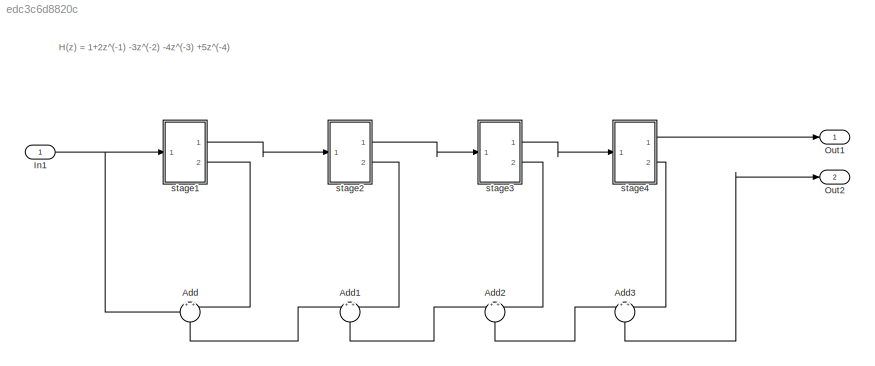
MODEL slx_edc3c6d8820c
KIND model
CONFIG AbsTol = auto
CONFIG EnableMultiTasking = off
CONFIG FixedStep = auto
CONFIG MaxStep = auto
CONFIG MinStep = auto
CONFIG RelTol = 1e-3
CONFIG SampleTimeConstraint = Unconstrained
CONFIG Solver = VariableStepAuto
CONFIG SolverName = VariableStepAuto
CONFIG StartTime = 0.0
CONFIG StopTime = 10.0
BLOCK [Sum] Add
  NameLocation = left
  Ports = [2, 1]
BLOCK [Sum] Add1
  NameLocation = left
  Ports = [2, 1]
BLOCK [Sum] Add2
  NameLocation = left
  Ports = [2, 1]
BLOCK [Sum] Add3
  NameLocation = left
  Ports = [2, 1]
BLOCK [Inport] In1
  OutDataTypeStr = double
  PortDimensions = 1
  SampleTime = 0
  SamplingMode = Sample based
  SignalType = real
BLOCK [Outport] Out1
  OutDataTypeStr = double
  PortDimensions = 1
  SampleTime = [0.20000000000000001,0]
  SamplingMode = Sample based
  SignalType = real
BLOCK [Outport] Out2
  OutDataTypeStr = double
  Port = 2
  PortDimensions = 1
  SampleTime = 0
  SamplingMode = Sample based
  SignalType = real
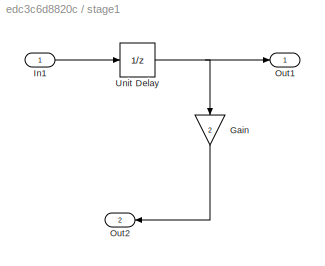
BLOCK [SubSystem] stage1
  Ports = [1, 2]
  RequestExecContextInheritance = off
BLOCK [Gain] stage1/Gain
  Gain = 2
  NameLocation = left
BLOCK [Inport] stage1/In1
BLOCK [Outport] stage1/Out1
BLOCK [Outport] stage1/Out2
  Port = 2
BLOCK [UnitDelay] stage1/Unit Delay
  HasFrameUpgradeWarning = on
  SampleTime = -1
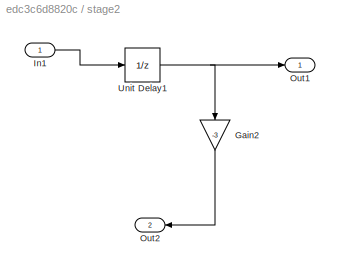
BLOCK [SubSystem] stage2
  Ports = [1, 2]
  RequestExecContextInheritance = off
BLOCK [Gain] stage2/Gain2
  Gain = -3
  NameLocation = left
BLOCK [Inport] stage2/In1
BLOCK [Outport] stage2/Out1
BLOCK [Outport] stage2/Out2
  Port = 2
BLOCK [UnitDelay] stage2/Unit Delay1
  HasFrameUpgradeWarning = on
  SampleTime = -1
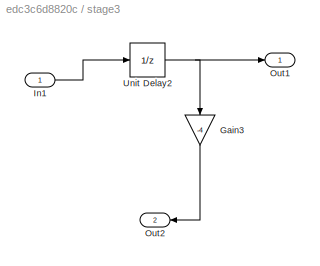
BLOCK [SubSystem] stage3
  Ports = [1, 2]
  RequestExecContextInheritance = off
BLOCK [Gain] stage3/Gain3
  Gain = -4
  NameLocation = left
BLOCK [Inport] stage3/In1
BLOCK [Outport] stage3/Out1
BLOCK [Outport] stage3/Out2
  Port = 2
BLOCK [UnitDelay] stage3/Unit Delay2
  HasFrameUpgradeWarning = on
  SampleTime = -1
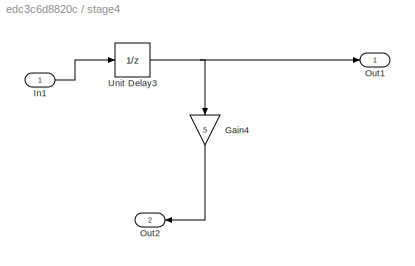
BLOCK [SubSystem] stage4
  Ports = [1, 2]
  RequestExecContextInheritance = off
BLOCK [Gain] stage4/Gain4
  Gain = 5
  NameLocation = left
BLOCK [Inport] stage4/In1
BLOCK [Outport] stage4/Out1
BLOCK [Outport] stage4/Out2
  Port = 2
BLOCK [UnitDelay] stage4/Unit Delay3
  HasFrameUpgradeWarning = on
  SampleTime = -1
ANNOTATION (root): H(z) = 1+2z^(-1) -3z^(-2) -4z^(-3) +5z^(-4)
LINE Add1:1 -> Add2:1
LINE Add2:1 -> Add3:1
LINE Add3:1 -> Out2:1
LINE Add:1 -> Add1:1
NET In1:1 -> Add:1, stage1:1
LINE stage1/Gain:1 -> stage1/Out2:1
LINE stage1/In1:1 -> stage1/Unit Delay:1
NET stage1/Unit Delay:1 -> stage1/Gain:1, stage1/Out1:1
LINE stage1:1 -> stage2:1
LINE stage1:2 -> Add:2
LINE stage2/Gain2:1 -> stage2/Out2:1
LINE stage2/In1:1 -> stage2/Unit Delay1:1
NET stage2/Unit Delay1:1 -> stage2/Gain2:1, stage2/Out1:1
LINE stage2:1 -> stage3:1
LINE stage2:2 -> Add1:2
LINE stage3/Gain3:1 -> stage3/Out2:1
LINE stage3/In1:1 -> stage3/Unit Delay2:1
NET stage3/Unit Delay2:1 -> stage3/Gain3:1, stage3/Out1:1
LINE stage3:1 -> stage4:1
LINE stage3:2 -> Add2:2
LINE stage4/Gain4:1 -> stage4/Out2:1
LINE stage4/In1:1 -> stage4/Unit Delay3:1
NET stage4/Unit Delay3:1 -> stage4/Gain4:1, stage4/Out1:1
LINE stage4:1 -> Out1:1
LINE stage4:2 -> Add3:2
note: NET lines group one-source signal fan-out (src -> all destinations, sorted); 1:1 wires keep LINE
